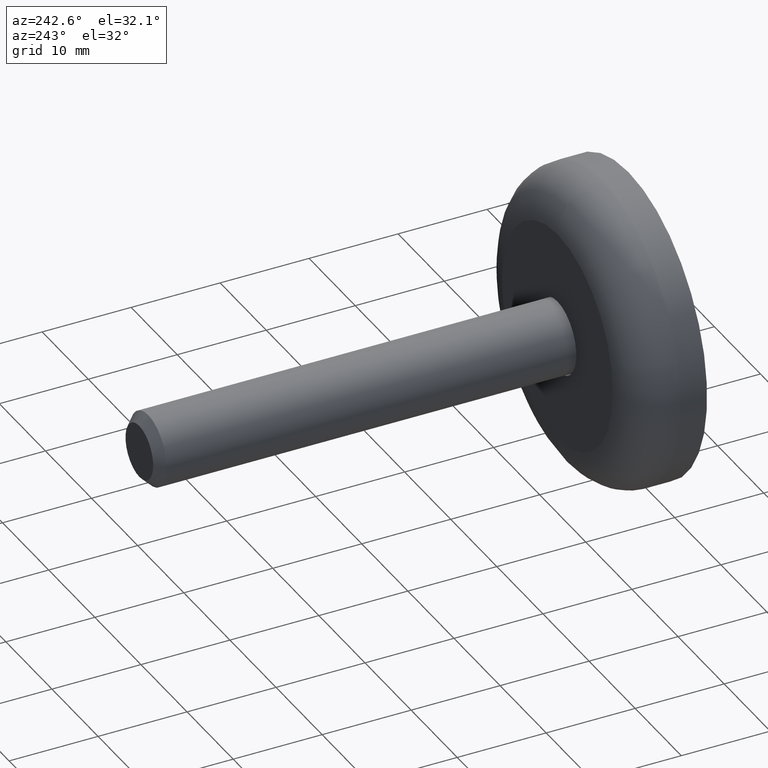
[diagram: clean part render]
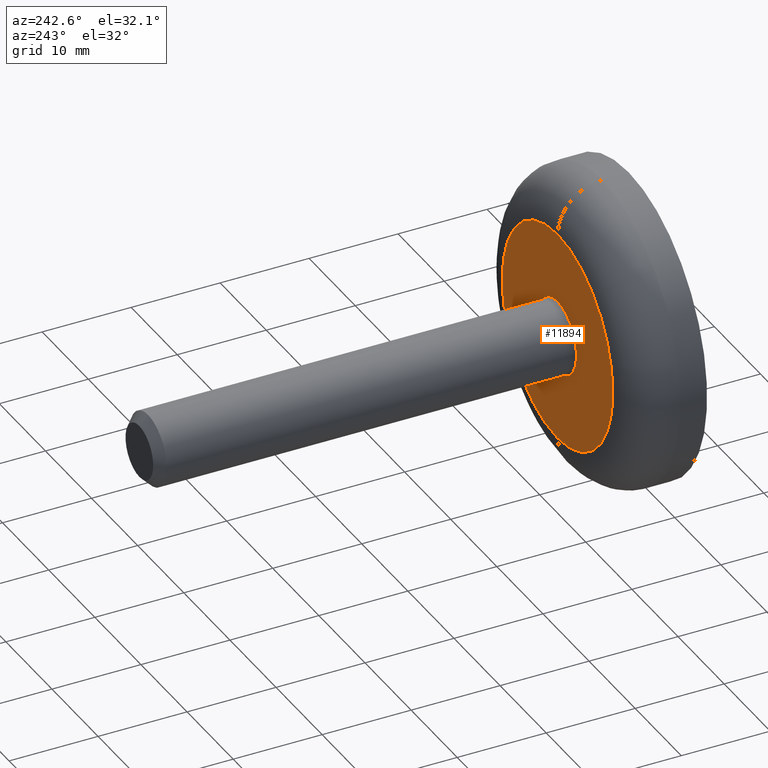
[diagram: same view with one face highlighted and labeled with its STEP entity id]
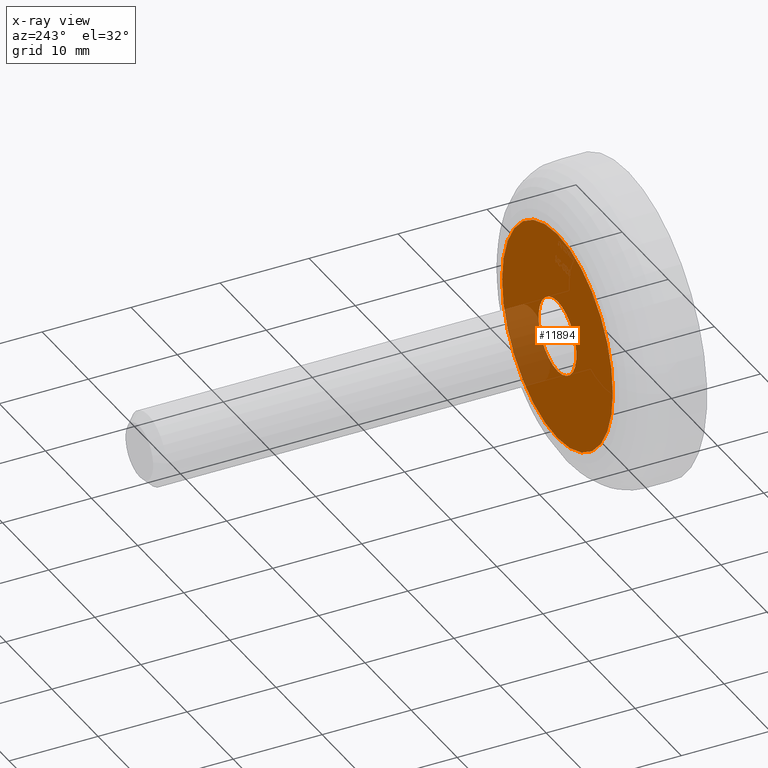
[diagram: x-ray of the same camera — body ghosted, the highlighted face saturated]
A machine part, auxiliary view. The second image highlights one B-rep face of the part: STEP entity #11894.
The next image is the same camera in x-ray: the body ghosted, the highlighted face saturated — about 15% of this face is hidden behind the body in this view.
In plain terms, the highlighted planar face has unit normal (0, 1, 0).
Its self-contained STEP definition (entity closure, byte-faithful):
#36 = CARTESIAN_POINT ( 'NONE',  ( 0.000000000000000000, 7.999999999999998224, 0.000000000000000000 ) ) ;
#69 = DIRECTION ( 'NONE',  ( 0.000000000000000000, 0.000000000000000000, 1.000000000000000000 ) ) ;
#306 = AXIS2_PLACEMENT_3D ( 'NONE', #805, #5697, #6749 ) ;
#418 = ORIENTED_EDGE ( 'NONE', *, *, #6080, .T. ) ;
#805 = CARTESIAN_POINT ( 'NONE',  ( 0.000000000000000000, 7.999999999999998224, 0.000000000000000000 ) ) ;
#1706 = EDGE_CURVE ( 'NONE', #12806, #11741, #11250, .T. ) ;
#1950 = AXIS2_PLACEMENT_3D ( 'NONE', #12753, #4354, #11526 ) ;
#3770 = CARTESIAN_POINT ( 'NONE',  ( 0.000000000000000000, 7.999999999999998224, 0.000000000000000000 ) ) ;
#3856 = FACE_OUTER_BOUND ( 'NONE', #13482, .T. ) ;
#4029 = CARTESIAN_POINT ( 'NONE',  ( 0.000000000000000000, 7.999999999999998224, 12.00000000000000000 ) ) ;
#4354 = DIRECTION ( 'NONE',  ( 0.000000000000000000, 1.000000000000000000, 0.000000000000000000 ) ) ;
#4784 = DIRECTION ( 'NONE',  ( -0.000000000000000000, -1.000000000000000000, -0.000000000000000000 ) ) ;
#4924 = VERTEX_POINT ( 'NONE', #4029 ) ;
#5159 = EDGE_CURVE ( 'NONE', #4924, #10227, #12444, .T. ) ;
#5446 = CIRCLE ( 'NONE', #14210, 12.00000000000000000 ) ;
#5519 = EDGE_LOOP ( 'NONE', ( #12112, #10101 ) ) ;
#5697 = DIRECTION ( 'NONE',  ( -0.000000000000000000, -1.000000000000000000, -0.000000000000000000 ) ) ;
#6004 = CARTESIAN_POINT ( 'NONE',  ( 0.000000000000000000, 7.999999999999998224, -4.100000000000006750 ) ) ;
#6080 = EDGE_CURVE ( 'NONE', #10227, #4924, #5446, .T. ) ;
#6119 = FACE_BOUND ( 'NONE', #5519, .T. ) ;
#6515 = AXIS2_PLACEMENT_3D ( 'NONE', #12009, #4784, #9654 ) ;
#6749 = DIRECTION ( 'NONE',  ( 0.000000000000000000, 0.000000000000000000, -1.000000000000000000 ) ) ;
#7362 = ORIENTED_EDGE ( 'NONE', *, *, #5159, .T. ) ;
#8309 = EDGE_CURVE ( 'NONE', #11741, #12806, #13402, .T. ) ;
#8507 = DIRECTION ( 'NONE',  ( 0.000000000000000000, 1.000000000000000000, 0.000000000000000000 ) ) ;
#8868 = CARTESIAN_POINT ( 'NONE',  ( 5.021051876504156260E-16, 7.999999999999998224, 4.100000000000006750 ) ) ;
#9152 = CARTESIAN_POINT ( 'NONE',  ( 1.775737858763662015E-15, 7.999999999999998224, -12.00000000000000000 ) ) ;
#9330 = PLANE ( 'NONE',  #1950 ) ;
#9654 = DIRECTION ( 'NONE',  ( 0.000000000000000000, 0.000000000000000000, -1.000000000000000000 ) ) ;
#9914 = DIRECTION ( 'NONE',  ( 0.000000000000000000, 1.000000000000000000, 0.000000000000000000 ) ) ;
#10101 = ORIENTED_EDGE ( 'NONE', *, *, #8309, .T. ) ;
#10227 = VERTEX_POINT ( 'NONE', #9152 ) ;
#10976 = DIRECTION ( 'NONE',  ( 0.000000000000000000, 0.000000000000000000, 1.000000000000000000 ) ) ;
#11250 = CIRCLE ( 'NONE', #306, 4.100000000000006750 ) ;
#11526 = DIRECTION ( 'NONE',  ( 0.000000000000000000, -0.000000000000000000, 1.000000000000000000 ) ) ;
#11741 = VERTEX_POINT ( 'NONE', #8868 ) ;
#11894 = ADVANCED_FACE ( 'NONE', ( #3856, #6119 ), #9330, .T. ) ;
#12009 = CARTESIAN_POINT ( 'NONE',  ( 0.000000000000000000, 7.999999999999998224, 0.000000000000000000 ) ) ;
#12112 = ORIENTED_EDGE ( 'NONE', *, *, #1706, .T. ) ;
#12444 = CIRCLE ( 'NONE', #14509, 12.00000000000000000 ) ;
#12753 = CARTESIAN_POINT ( 'NONE',  ( 4.100000000000006750, 7.999999999999998224, 0.000000000000000000 ) ) ;
#12806 = VERTEX_POINT ( 'NONE', #6004 ) ;
#13402 = CIRCLE ( 'NONE', #6515, 4.100000000000006750 ) ;
#13482 = EDGE_LOOP ( 'NONE', ( #7362, #418 ) ) ;
#14210 = AXIS2_PLACEMENT_3D ( 'NONE', #36, #8507, #10976 ) ;
#14509 = AXIS2_PLACEMENT_3D ( 'NONE', #3770, #9914, #69 ) ;